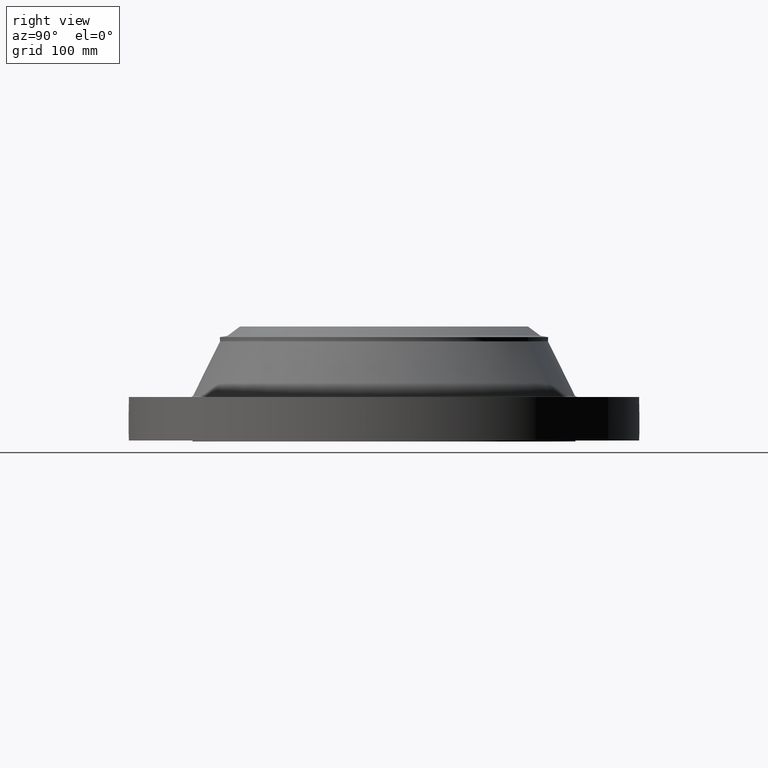
[diagram: clean part render]
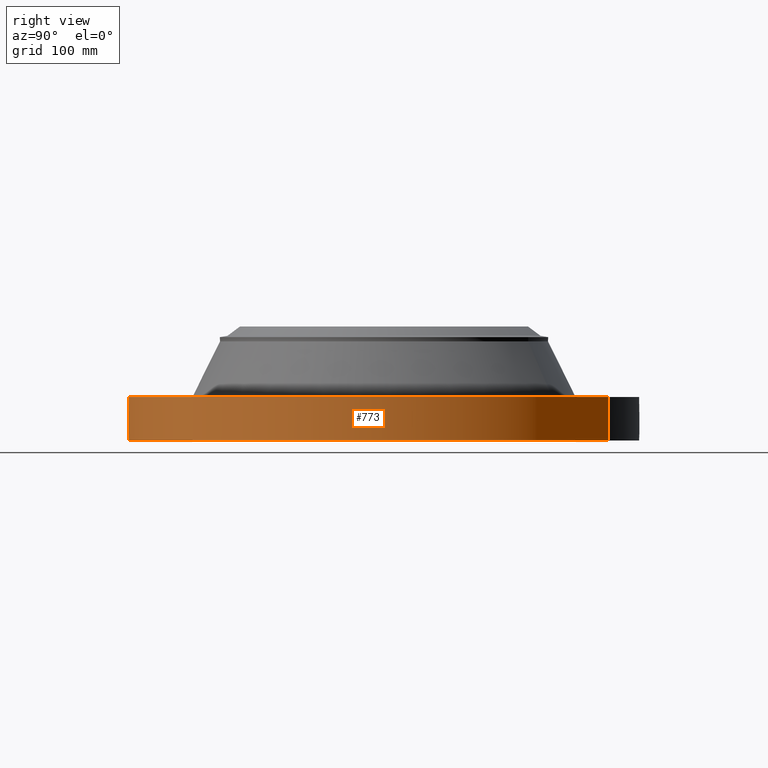
[diagram: same view with one face highlighted and labeled with its STEP entity id]
A machine part, right view. The second image highlights one B-rep face of the part: STEP entity #773.
In plain terms, the highlighted cylindrical surface (partial cylindrical patch) has radius 355.6 mm, axis along (0, 0, -1).
Its self-contained STEP definition (entity closure, byte-faithful):
#38=AXIS2_PLACEMENT_3D('Cylinder Axis2P3D',#35,#36,#37) ;
#169=AXIS2_PLACEMENT_3D('Circle Axis2P3D',#167,#168,$) ;
#677=AXIS2_PLACEMENT_3D('Circle Axis2P3D',#675,#676,$) ;
#35=CARTESIAN_POINT('Axis2P3D Location',(0.,0.,3.15500000001)) ;
#44=CARTESIAN_POINT('Vertex',(-6.71195754049,-12.2861558665,0.0600000000002)) ;
#46=CARTESIAN_POINT('Vertex',(6.71195754049,12.2861558665,0.0600000000002)) ;
#49=CARTESIAN_POINT('Line Origine',(-6.71195754049,-12.2861558665,1.25000000001)) ;
#53=CARTESIAN_POINT('Vertex',(-6.71195754049,-12.2861558665,2.44000000001)) ;
#60=CARTESIAN_POINT('Vertex',(6.71195754049,12.2861558665,2.44000000001)) ;
#63=CARTESIAN_POINT('Line Origine',(6.71195754049,12.2861558665,1.25000000001)) ;
#167=CARTESIAN_POINT('Axis2P3D Location',(0.,0.,0.0600000000002)) ;
#675=CARTESIAN_POINT('Axis2P3D Location',(0.,0.,2.44000000001)) ;
#687=CARTESIAN_POINT('Control Point',(0.000716127867767,-13.9999999817,1.2941184611)) ;
#688=CARTESIAN_POINT('Control Point',(0.0190756921838,-13.9999990426,1.29408137462)) ;
#689=CARTESIAN_POINT('Control Point',(0.0374320289466,-13.9999617001,1.29261239076)) ;
#690=CARTESIAN_POINT('Control Point',(0.0555635768003,-13.9998897385,1.28972942871)) ;
#691=CARTESIAN_POINT('Vertex',(0.000715744029722,-13.9999999818,1.29411851041)) ;
#693=CARTESIAN_POINT('Vertex',(0.0555546444298,-13.9998900267,1.28973086744)) ;
#697=CARTESIAN_POINT('Control Point',(0.0555545482502,-13.9998897743,1.28973031747)) ;
#698=CARTESIAN_POINT('Control Point',(0.0958936325267,-13.9997297003,1.28526514862)) ;
#699=CARTESIAN_POINT('Control Point',(0.13558144376,-13.999391176,1.27345856191)) ;
#700=CARTESIAN_POINT('Control Point',(0.172124900836,-13.9989418536,1.25510326735)) ;
#701=CARTESIAN_POINT('Vertex',(0.172124900836,-13.9989418536,1.25510326735)) ;
#705=CARTESIAN_POINT('Control Point',(0.0309215443361,-13.9999658521,0.531182270677)) ;
#706=CARTESIAN_POINT('Control Point',(0.100166440122,-13.9998129118,0.539950593386)) ;
#707=CARTESIAN_POINT('Control Point',(0.167079236947,-13.9992370071,0.564143778958)) ;
#708=CARTESIAN_POINT('Control Point',(0.226861954532,-13.9983036339,0.602946396932)) ;
#709=CARTESIAN_POINT('Control Point',(0.299410381845,-13.9968606612,0.6769926444)) ;
#710=CARTESIAN_POINT('Control Point',(0.344252870474,-13.9957762927,0.767303575628)) ;
#711=CARTESIAN_POINT('Control Point',(0.355712957514,-13.9954842685,0.798010937851)) ;
#712=CARTESIAN_POINT('Control Point',(0.374230294246,-13.9950011289,0.869287899525)) ;
#713=CARTESIAN_POINT('Control Point',(0.375902035579,-13.9949509829,0.942614532078)) ;
#714=CARTESIAN_POINT('Control Point',(0.371520169502,-13.9950715435,0.983222785399)) ;
#715=CARTESIAN_POINT('Control Point',(0.349038329195,-13.9956736807,1.0757173805)) ;
#716=CARTESIAN_POINT('Control Point',(0.299568240057,-13.9968425287,1.15711544893)) ;
#717=CARTESIAN_POINT('Control Point',(0.263036001539,-13.9976212517,1.19806543943)) ;
#718=CARTESIAN_POINT('Control Point',(0.219778115206,-13.9983559304,1.2311676831)) ;
#719=CARTESIAN_POINT('Control Point',(0.172124900836,-13.9989418536,1.25510326735)) ;
#720=CARTESIAN_POINT('Vertex',(0.0309215443361,-13.9999658521,0.531182270677)) ;
#724=CARTESIAN_POINT('Control Point',(0.030921544336,-13.9999658521,0.531182270677)) ;
#725=CARTESIAN_POINT('Control Point',(0.0206093649101,-13.9999886285,0.530873555988)) ;
#726=CARTESIAN_POINT('Control Point',(0.0102899488199,-14.0000000021,0.530937862641)) ;
#727=CARTESIAN_POINT('Control Point',(-2.72878356816E-006,-14.0000000001,0.531374667806)) ;
#728=CARTESIAN_POINT('Vertex',(-2.7287835439E-006,-14.0000000001,0.531374667806)) ;
#732=CARTESIAN_POINT('Control Point',(-0.192703589045,-13.9986736989,0.587269393771)) ;
#733=CARTESIAN_POINT('Control Point',(-0.149035569386,-13.9992748261,0.561955714133)) ;
#734=CARTESIAN_POINT('Control Point',(-0.101122046135,-13.9997535108,0.543750366055)) ;
#735=CARTESIAN_POINT('Control Point',(-0.0508078031956,-13.9999999902,0.533530754796)) ;
#736=CARTESIAN_POINT('Control Point',(-2.72878353086E-006,-14.0000000001,0.531374667806)) ;
#737=CARTESIAN_POINT('Vertex',(-0.192703589045,-13.9986736989,0.587269393771)) ;
#741=CARTESIAN_POINT('Control Point',(-0.192703589045,-13.9986736989,0.587269393771)) ;
#742=CARTESIAN_POINT('Control Point',(-0.249588117192,-13.9978906352,0.620244477991)) ;
#743=CARTESIAN_POINT('Control Point',(-0.29973871044,-13.9969112726,0.664526604085)) ;
#744=CARTESIAN_POINT('Control Point',(-0.34001597804,-13.9959144401,0.718593042762)) ;
#745=CARTESIAN_POINT('Control Point',(-0.384401829912,-13.994732457,0.816720986308)) ;
#746=CARTESIAN_POINT('Control Point',(-0.393085676971,-13.9944790209,0.922012512787)) ;
#747=CARTESIAN_POINT('Control Point',(-0.391005827269,-13.9945390527,0.96214484836)) ;
#748=CARTESIAN_POINT('Control Point',(-0.376915976473,-13.9949387522,1.0370148654)) ;
#749=CARTESIAN_POINT('Control Point',(-0.344864456681,-13.9957656029,1.10542250037)) ;
#750=CARTESIAN_POINT('Control Point',(-0.325823316144,-13.9962322037,1.13584274483)) ;
#751=CARTESIAN_POINT('Control Point',(-0.26402180597,-13.9976173433,1.2124504117)) ;
#752=CARTESIAN_POINT('Control Point',(-0.180761972454,-13.9989966383,1.26554894152)) ;
#753=CARTESIAN_POINT('Control Point',(-0.12180819296,-13.9996739846,1.2876552619)) ;
#754=CARTESIAN_POINT('Control Point',(-0.0604215872694,-14.0000001117,1.29711662666)) ;
#755=CARTESIAN_POINT('Control Point',(2.58579355198E-005,-14.,1.2941529843)) ;
#756=CARTESIAN_POINT('Vertex',(2.58579355456E-005,-14.,1.2941529843)) ;
#760=CARTESIAN_POINT('Control Point',(0.000715744020059,-13.9999999818,1.29411851039)) ;
#761=CARTESIAN_POINT('Control Point',(0.000370825468653,-13.9999999994,1.2941360711)) ;
#762=CARTESIAN_POINT('Control Point',(2.58579406863E-005,-14.,1.2941529843)) ;
#36=DIRECTION('Axis2P3D Direction',(0.,0.,-0.0393700787402)) ;
#37=DIRECTION('Axis2P3D XDirection',(0.0188750212049,0.0345504945626,0.)) ;
#50=DIRECTION('Vector Direction',(0.,0.,-0.0393700787402)) ;
#64=DIRECTION('Vector Direction',(0.,0.,-0.0393700787402)) ;
#168=DIRECTION('Axis2P3D Direction',(0.,0.,-0.0393700787402)) ;
#676=DIRECTION('Axis2P3D Direction',(0.,0.,-0.0393700787402)) ;
#51=VECTOR('Line Direction',#50,0.0393700787402) ;
#65=VECTOR('Line Direction',#64,0.0393700787402) ;
#681=ORIENTED_EDGE('',*,*,#171,.F.) ;
#682=ORIENTED_EDGE('',*,*,#67,.T.) ;
#683=ORIENTED_EDGE('',*,*,#679,.T.) ;
#684=ORIENTED_EDGE('',*,*,#55,.F.) ;
#765=ORIENTED_EDGE('',*,*,#695,.T.) ;
#766=ORIENTED_EDGE('',*,*,#703,.T.) ;
#767=ORIENTED_EDGE('',*,*,#722,.F.) ;
#768=ORIENTED_EDGE('',*,*,#730,.T.) ;
#769=ORIENTED_EDGE('',*,*,#739,.F.) ;
#770=ORIENTED_EDGE('',*,*,#758,.T.) ;
#771=ORIENTED_EDGE('',*,*,#763,.F.) ;
#772=FACE_BOUND('',#764,.T.) ;
#773=ADVANCED_FACE('PartBody',(#685,#772),#39,.T.) ;
#686=B_SPLINE_CURVE_WITH_KNOTS('',3,(#687,#688,#689,#690),.UNSPECIFIED.,.F.,.U.,(4,4),(34.6165208827,36.6533405602),.UNSPECIFIED.) ;
#696=B_SPLINE_CURVE_WITH_KNOTS('',3,(#697,#698,#699,#700),.UNSPECIFIED.,.F.,.U.,(4,4),(0.,4.56033627726),.UNSPECIFIED.) ;
#704=B_SPLINE_CURVE_WITH_KNOTS('',5,(#705,#706,#707,#708,#709,#710,#711,#712,#713,#714,#715,#716,#717,#718,#719),.UNSPECIFIED.,.F.,.U.,(6,3,3,3,6),(0.,12.1301134658,17.9857334483,25.3556992433,35.2669441841),.UNSPECIFIED.) ;
#723=B_SPLINE_CURVE_WITH_KNOTS('',3,(#724,#725,#726,#727),.UNSPECIFIED.,.F.,.U.,(4,4),(0.,1.07570519055),.UNSPECIFIED.) ;
#731=B_SPLINE_CURVE_WITH_KNOTS('',4,(#732,#733,#734,#735,#736),.UNSPECIFIED.,.F.,.U.,(5,5),(0.,7.07963263212),.UNSPECIFIED.) ;
#740=B_SPLINE_CURVE_WITH_KNOTS('',5,(#741,#742,#743,#744,#745,#746,#747,#748,#749,#750,#751,#752,#753,#754,#755),.UNSPECIFIED.,.F.,.U.,(6,3,3,3,6),(0.,11.5279315941,18.5943531018,25.0081299954,36.3070119915),.UNSPECIFIED.) ;
#759=B_SPLINE_CURVE_WITH_KNOTS('',2,(#760,#761,#762),.UNSPECIFIED.,.F.,.U.,(3,3),(1.02463830809,1.05043094532),.UNSPECIFIED.) ;
#170=CIRCLE('generated circle',#169,14.0000000001) ;
#678=CIRCLE('generated circle',#677,14.0000000001) ;
#39=CYLINDRICAL_SURFACE('generated cylinder',#38,14.0000000001) ;
#55=EDGE_CURVE('',#45,#54,#52,.F.) ;
#67=EDGE_CURVE('',#47,#61,#66,.F.) ;
#171=EDGE_CURVE('',#47,#45,#170,.T.) ;
#679=EDGE_CURVE('',#61,#54,#678,.T.) ;
#695=EDGE_CURVE('',#692,#694,#686,.T.) ;
#703=EDGE_CURVE('',#694,#702,#696,.T.) ;
#722=EDGE_CURVE('',#721,#702,#704,.T.) ;
#730=EDGE_CURVE('',#721,#729,#723,.T.) ;
#739=EDGE_CURVE('',#738,#729,#731,.T.) ;
#758=EDGE_CURVE('',#738,#757,#740,.T.) ;
#763=EDGE_CURVE('',#692,#757,#759,.T.) ;
#680=EDGE_LOOP('',(#681,#682,#683,#684)) ;
#764=EDGE_LOOP('',(#765,#766,#767,#768,#769,#770,#771)) ;
#685=FACE_OUTER_BOUND('',#680,.T.) ;
#52=LINE('Line',#49,#51) ;
#66=LINE('Line',#63,#65) ;
#45=VERTEX_POINT('',#44) ;
#47=VERTEX_POINT('',#46) ;
#54=VERTEX_POINT('',#53) ;
#61=VERTEX_POINT('',#60) ;
#692=VERTEX_POINT('',#691) ;
#694=VERTEX_POINT('',#693) ;
#702=VERTEX_POINT('',#701) ;
#721=VERTEX_POINT('',#720) ;
#729=VERTEX_POINT('',#728) ;
#738=VERTEX_POINT('',#737) ;
#757=VERTEX_POINT('',#756) ;